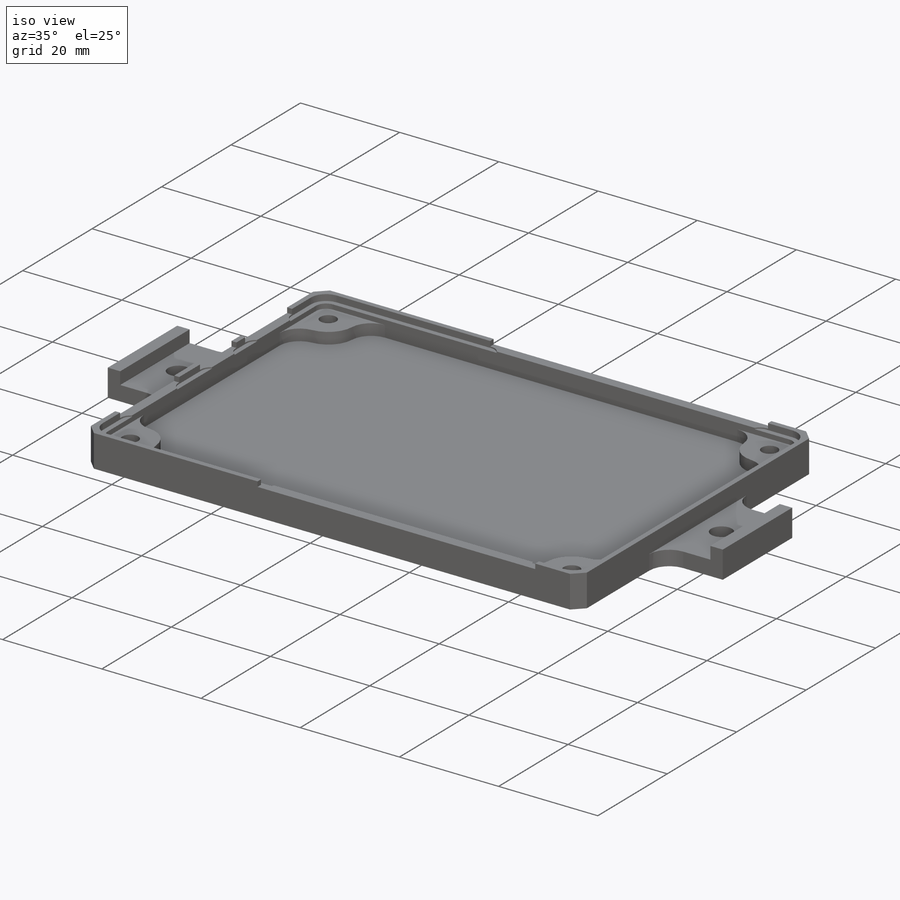
[diagram: iso view]
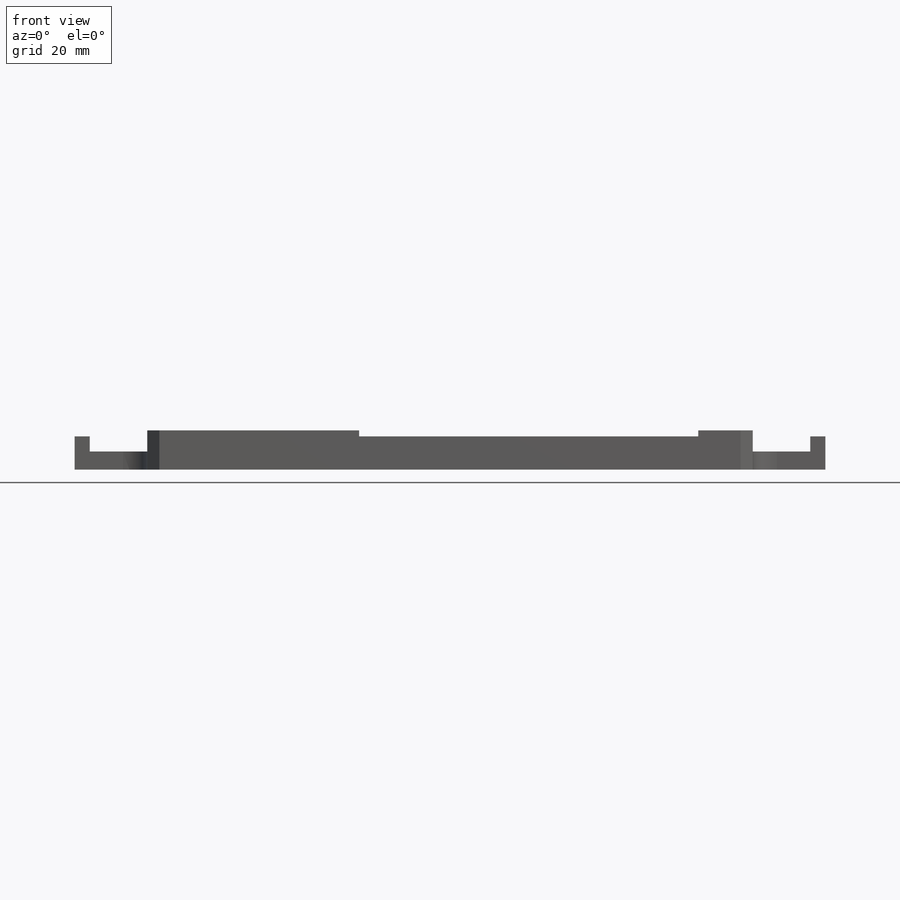
[diagram: front view]
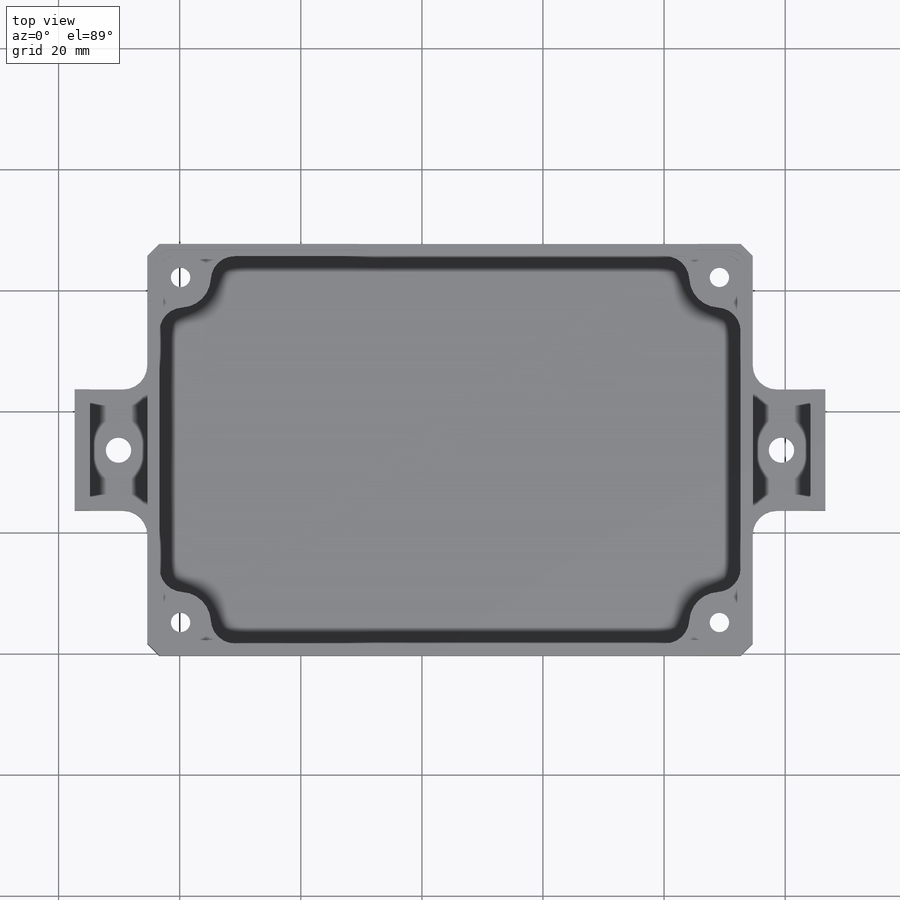
[diagram: top view]
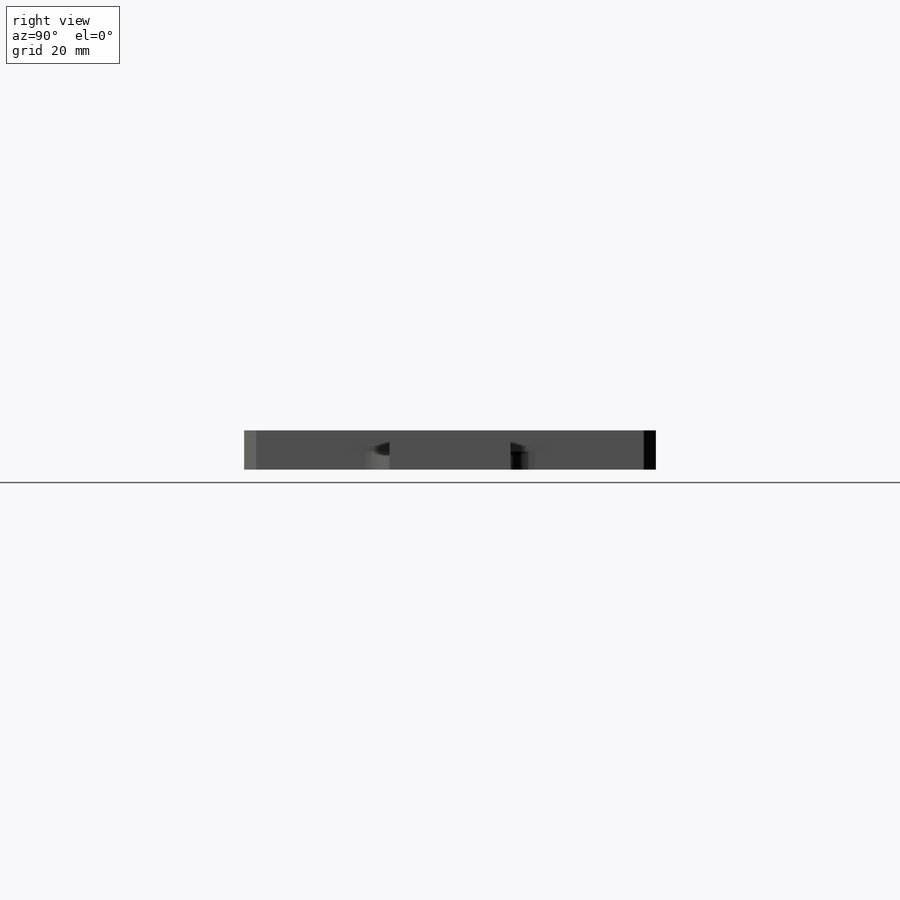
[diagram: right view]
SOLIDWORKS PART (.sldprt)
format: sldprt  version: not decoded by parser v0  size: 694,784 bytes
history: native  units: mm
features: sketch x12, cut_extrude x7, extrude x5, fillet x3, material x1 (+12 scaffold rows collapsed)
feature tree (40):
  scaffold x12  (default folders/planes/origin — collapsed)
  material  "Material <not specified>"
  sketch  "Sketch1"  dims[D1=100.0mm D2=68.0mm]
  extrude  "Boss-Extrude1"  Depth=5.5mm
  sketch  "Sketch2"  dims[c1.D5=2.0mm c1.D6=2.0mm c1.D7=2.0mm c1.D8=2.0mm c1.D1=2.0mm c1.D2=2.0mm c1.D3=2.0mm c1.D4=2.0mm c2.D6=2.0mm c2.D7=2.0mm c2.D8=2.0mm c2.D5=2.0mm]
  cut_extrude  "pcb basin"  Depth=2mm
  sketch  "Sketch3"  dims[c1.D1=10.0mm c1.D8=5.0mm c1.D4=5.5mm c1.D5=~9.929518mm c2.D5=90.0deg c3.D5=5.5mm c3.D6=10.5mm c3.D7=64.0mm c4.D7=90.0deg c5.D7=10.5mm]
  extrude  "pcb posts"  Depth=1.2mm
  sketch  "Sketch4"  dims[D1=3.2mm D4=5.5mm D5=5.5mm D2=2.0 D3=2.0]
  cut_extrude  "screw holes"  [1 undecoded]
  sketch  "Sketch6"  dims[D1=6.0mm D4=5.5mm D5=5.5mm D2=2.0 D3=2.0]
  cut_extrude  "screw chamfer"  Depth=3mm
  sketch  "Sketch11"  dims[D3=3.0mm D4=3.0mm D5=3.0mm D6=3.0mm D1=0.0mm D2=1.0mm]
  extrude  "lip"  Depth=1mm
  fillet  "basin fillet"  Radius=4mm
  sketch  "Sketch12"  dims[c1.D1=0.5mm c1.D2=0.5mm c1.D3=0.5mm c1.D4=0.5mm c2.D1=0.5mm c2.D2=0.5mm c2.D5=0.5mm c2.D6=0.5mm]
  cut_extrude  "interface connector cutout"  Depth=10mm
  sketch  "Sketch13"  dims[D1=0.5mm D2=0.5mm]
  cut_extrude  "pop connector cutout"  [1 undecoded]
  sketch  "Sketch14"  dims[D3=2.0mm D4=2.0mm D5=2.0mm D6=2.0mm D7=2.0mm D8=2.0mm D9=2.0mm D10=2.0mm D11=2.0mm D1=0.0mm D2=0.0mm]
  cut_extrude  "Cut-Extrude3"  Depth=0.25mm
  fillet  "Fillet7"  Radius=2mm
  sketch  "Sketch15"  dims[c1.D1=12.0mm c1.D2=20.0mm c1.D3=~21.856223mm c1.D4=96.0mm c2.D3=24.0mm c2.D4=12.0mm c2.D5=24.0mm c2.D6=20.0mm]
  extrude  "mounting pegs"  Depth=3mm
  fillet  "mounting pegs fillet"  Radius=4mm
  sketch  "mounting peg lips"  dims[c1.D1=2.5mm c1.D2=2.5mm c2.D1=2.5mm]
  extrude  "Boss-Extrude3"  Depth=2.5mm
  sketch  "Sketch17"  dims[D5=4.2mm D6=4.2mm D1=10.0mm D2=7.25mm D3=10.0mm D4=7.25mm]
  cut_extrude  "Cut-Extrude4"  [1 undecoded]
decode coverage: 24 of 27 modeling features carry decoded parameters
note: ~ marks probable driven/reference dimensions
note: 3 parameter values undecoded
summary: no parameter record found for 3 features
note: suppression state not decoded; provenance and decode notes live in map.json
